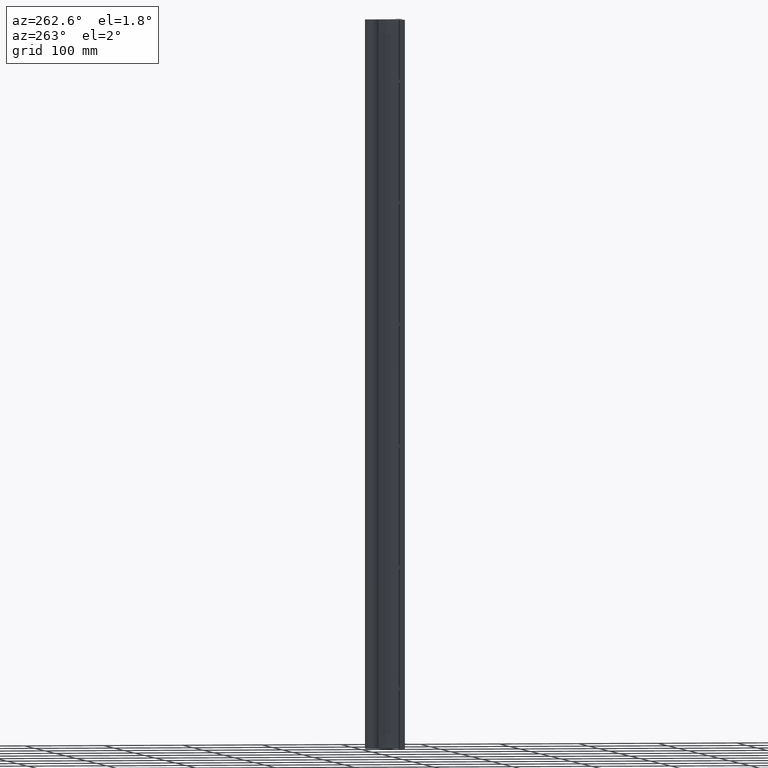
[diagram: clean part render]
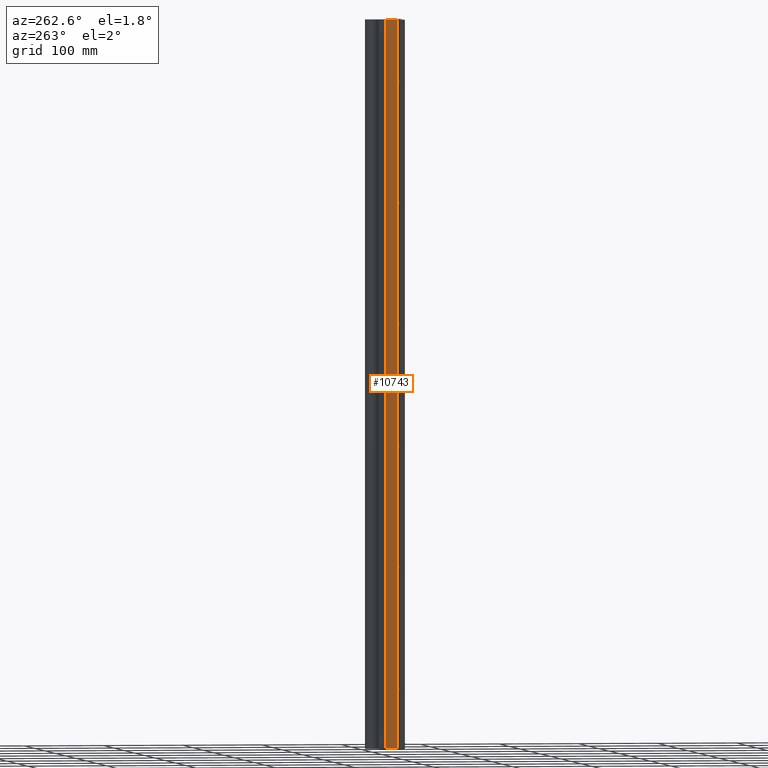
[diagram: same view with one face highlighted and labeled with its STEP entity id]
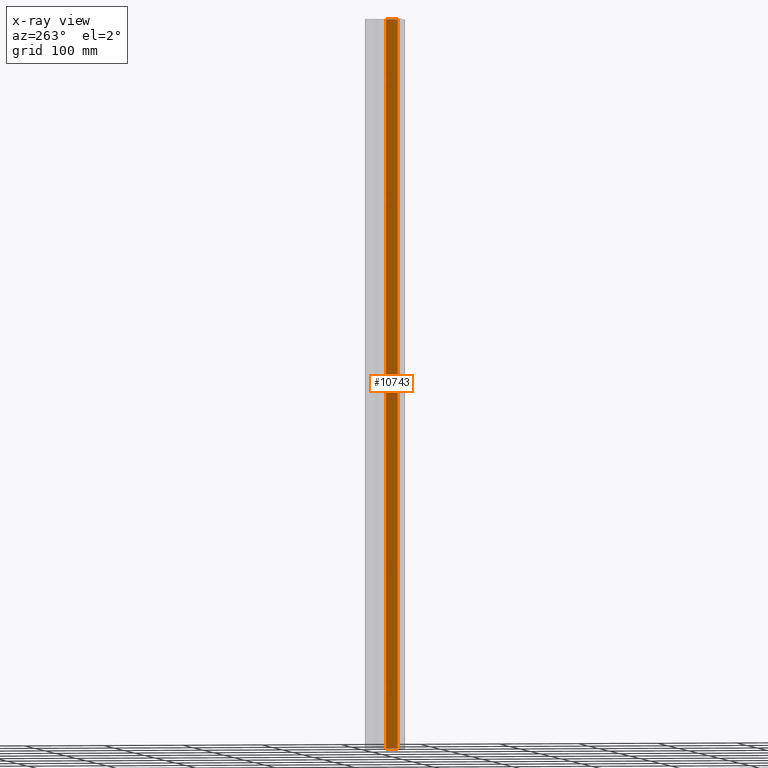
[diagram: x-ray of the same camera — body ghosted, the highlighted face saturated]
A machine part, auxiliary view. The second image highlights one B-rep face of the part: STEP entity #10743.
The next image is the same camera in x-ray: the body ghosted, the highlighted face saturated — about 0% of this face is hidden behind the body in this view.
In plain terms, the highlighted planar face has unit normal (-0.9511, 0.309, 0).
Its self-contained STEP definition (entity closure, byte-faithful):
#426 = CARTESIAN_POINT ( 'NONE',  ( -0.1905589677000024129, 0.8519652309999998785, 0.000000000000000000 ) ) ;
#789 = CARTESIAN_POINT ( 'NONE',  ( -0.3721172034000003737, 0.2931864378999993193, 0.000000000000000000 ) ) ;
#872 = VECTOR ( 'NONE', #4125, 39.37007874015748143 ) ;
#885 = ORIENTED_EDGE ( 'NONE', *, *, #10307, .F. ) ;
#1216 = VERTEX_POINT ( 'NONE', #4921 ) ;
#1706 = PLANE ( 'NONE',  #9567 ) ;
#1708 = ORIENTED_EDGE ( 'NONE', *, *, #12279, .F. ) ;
#1957 = LINE ( 'NONE', #3076, #6265 ) ;
#3066 = VERTEX_POINT ( 'NONE', #789 ) ;
#3076 = CARTESIAN_POINT ( 'NONE',  ( -0.1905589677000024129, 0.8519652309999998785, -36.00000000000000000 ) ) ;
#3603 = CARTESIAN_POINT ( 'NONE',  ( -0.1905589677000024129, 0.8519652309999998785, -36.00000000000000000 ) ) ;
#3653 = LINE ( 'NONE', #4469, #12233 ) ;
#4125 = DIRECTION ( 'NONE',  ( 0.000000000000000000, 0.000000000000000000, 1.000000000000000000 ) ) ;
#4469 = CARTESIAN_POINT ( 'NONE',  ( -0.1905589677000024129, 0.8519652309999998785, -38.10463218188032641 ) ) ;
#4921 = CARTESIAN_POINT ( 'NONE',  ( -0.3721172034000003181, 0.2931864378999994303, -36.00000000000000000 ) ) ;
#5355 = DIRECTION ( 'NONE',  ( -0.3090169943511710260, -0.9510565163028790181, 0.000000000000000000 ) ) ;
#5982 = EDGE_CURVE ( 'NONE', #9443, #3066, #8726, .T. ) ;
#6265 = VECTOR ( 'NONE', #10401, 39.37007874015748143 ) ;
#6317 = VECTOR ( 'NONE', #7827, 39.37007874015748143 ) ;
#6586 = DIRECTION ( 'NONE',  ( 0.000000000000000000, 0.000000000000000000, 1.000000000000000000 ) ) ;
#6947 = VERTEX_POINT ( 'NONE', #3603 ) ;
#7267 = CARTESIAN_POINT ( 'NONE',  ( -0.1905589677000024129, 0.8519652309999998785, -38.10463218188032641 ) ) ;
#7388 = CARTESIAN_POINT ( 'NONE',  ( -0.3721172034000003181, 0.2931864378999993193, -38.10463218188032641 ) ) ;
#7598 = ORIENTED_EDGE ( 'NONE', *, *, #13166, .T. ) ;
#7827 = DIRECTION ( 'NONE',  ( -0.3090169943511710260, -0.9510565163028790181, 0.000000000000000000 ) ) ;
#8726 = LINE ( 'NONE', #426, #6317 ) ;
#9443 = VERTEX_POINT ( 'NONE', #12604 ) ;
#9567 = AXIS2_PLACEMENT_3D ( 'NONE', #7267, #12692, #5355 ) ;
#9715 = EDGE_LOOP ( 'NONE', ( #885, #7598, #10790, #1708 ) ) ;
#10099 = FACE_OUTER_BOUND ( 'NONE', #9715, .T. ) ;
#10307 = EDGE_CURVE ( 'NONE', #1216, #6947, #1957, .T. ) ;
#10401 = DIRECTION ( 'NONE',  ( 0.3090169943511710260, 0.9510565163028790181, -0.000000000000000000 ) ) ;
#10743 = ADVANCED_FACE ( 'NONE', ( #10099 ), #1706, .T. ) ;
#10790 = ORIENTED_EDGE ( 'NONE', *, *, #5982, .F. ) ;
#11430 = LINE ( 'NONE', #7388, #872 ) ;
#12233 = VECTOR ( 'NONE', #6586, 39.37007874015748143 ) ;
#12279 = EDGE_CURVE ( 'NONE', #6947, #9443, #3653, .T. ) ;
#12604 = CARTESIAN_POINT ( 'NONE',  ( -0.1905589677000024129, 0.8519652309999998785, 0.000000000000000000 ) ) ;
#12692 = DIRECTION ( 'NONE',  ( -0.9510565163028790181, 0.3090169943511710260, 0.000000000000000000 ) ) ;
#13166 = EDGE_CURVE ( 'NONE', #1216, #3066, #11430, .T. ) ;